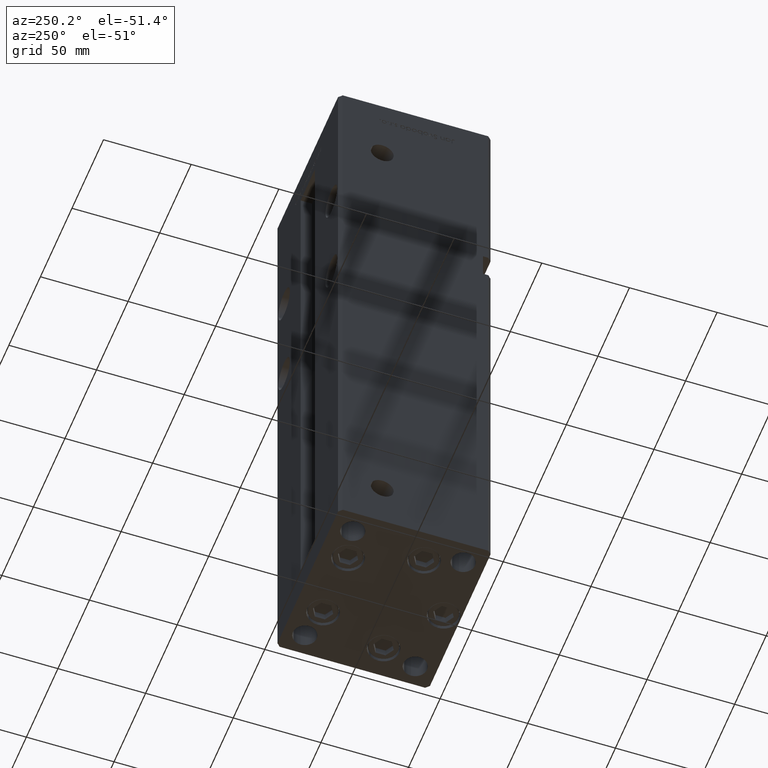
[diagram: clean part render]
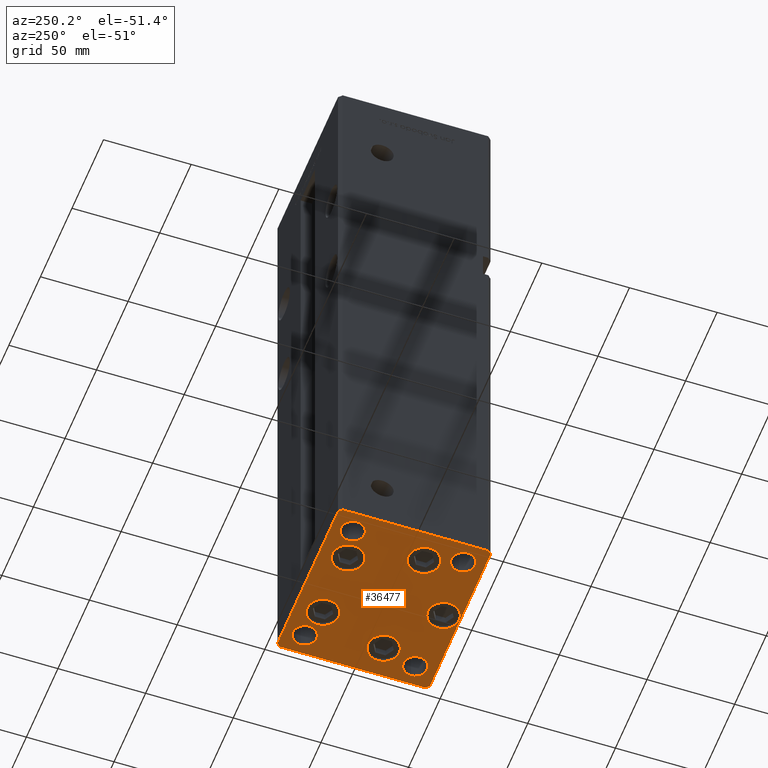
[diagram: same view with one face highlighted and labeled with its STEP entity id]
A machine part, auxiliary view. The second image highlights one B-rep face of the part: STEP entity #36477.
In plain terms, the highlighted planar face has unit normal (0, 0, -1).
Its self-contained STEP definition (entity closure, byte-faithful):
#303 = DIRECTION ( 'NONE',  ( 1.000000000000000000, 0.000000000000000000, 0.000000000000000000 ) ) ;
#406 = VERTEX_POINT ( 'NONE', #17694 ) ;
#728 = DIRECTION ( 'NONE',  ( 1.000000000000000000, 0.000000000000000000, 0.000000000000000000 ) ) ;
#948 = CIRCLE ( 'NONE', #28423, 6.749999999999999112 ) ;
#1153 = CARTESIAN_POINT ( 'NONE',  ( 47.99999999999990763, 43.50000000000000000, 0.000000000000000000 ) ) ;
#1246 = CARTESIAN_POINT ( 'NONE',  ( -48.00000000000000711, 43.49999999999996447, 0.000000000000000000 ) ) ;
#1298 = CARTESIAN_POINT ( 'NONE',  ( 10.82068048781373193, 27.62500000000000000, 0.000000000000000000 ) ) ;
#1596 = DIRECTION ( 'NONE',  ( 0.000000000000000000, -0.000000000000000000, -1.000000000000000000 ) ) ;
#1767 = CIRCLE ( 'NONE', #3488, 9.000000000000001776 ) ;
#2062 = DIRECTION ( 'NONE',  ( 0.000000000000000000, -0.000000000000000000, -1.000000000000000000 ) ) ;
#2737 = FACE_BOUND ( 'NONE', #41544, .T. ) ;
#3134 = DIRECTION ( 'NONE',  ( 1.000000000000000000, 0.000000000000000000, 0.000000000000000000 ) ) ;
#3422 = AXIS2_PLACEMENT_3D ( 'NONE', #43713, #31609, #3134 ) ;
#3488 = AXIS2_PLACEMENT_3D ( 'NONE', #46322, #21879, #38267 ) ;
#3716 = EDGE_CURVE ( 'NONE', #49162, #7151, #17108, .T. ) ;
#4215 = CIRCLE ( 'NONE', #41104, 6.749999999999999112 ) ;
#4802 = VERTEX_POINT ( 'NONE', #29209 ) ;
#5063 = AXIS2_PLACEMENT_3D ( 'NONE', #49881, #28928, #13069 ) ;
#5149 = CARTESIAN_POINT ( 'NONE',  ( 28.82068048781372838, 27.62500000000000000, 0.000000000000000000 ) ) ;
#5553 = CARTESIAN_POINT ( 'NONE',  ( 19.82068048781373193, 27.62500000000000000, 0.000000000000000000 ) ) ;
#5674 = EDGE_LOOP ( 'NONE', ( #14647, #22454 ) ) ;
#5781 = ORIENTED_EDGE ( 'NONE', *, *, #39773, .T. ) ;
#5803 = DIRECTION ( 'NONE',  ( -0.7071067811865463515, -0.7071067811865487940, 0.000000000000000000 ) ) ;
#5866 = CARTESIAN_POINT ( 'NONE',  ( -19.82068048781373903, 27.62499999999999645, 0.000000000000000000 ) ) ;
#6255 = CARTESIAN_POINT ( 'NONE',  ( 9.000000000000003553, -34.00000000000000000, 0.000000000000000000 ) ) ;
#6381 = DIRECTION ( 'NONE',  ( 1.000000000000000000, 0.000000000000000000, 0.000000000000000000 ) ) ;
#6759 = FACE_BOUND ( 'NONE', #51828, .T. ) ;
#6775 = LINE ( 'NONE', #19930, #38595 ) ;
#6898 = CIRCLE ( 'NONE', #18963, 9.000000000000001776 ) ;
#7151 = VERTEX_POINT ( 'NONE', #19169 ) ;
#7525 = CARTESIAN_POINT ( 'NONE',  ( 19.82068048781373193, 27.62500000000000000, 0.000000000000000000 ) ) ;
#7600 = DIRECTION ( 'NONE',  ( -0.7071067811865474617, 0.7071067811865474617, 0.000000000000000000 ) ) ;
#7845 = CARTESIAN_POINT ( 'NONE',  ( 32.05550741379015278, -11.33333333333333037, 0.000000000000000000 ) ) ;
#8304 = DIRECTION ( 'NONE',  ( 0.7071067811865463515, 0.7071067811865487940, 0.000000000000000000 ) ) ;
#8374 = VERTEX_POINT ( 'NONE', #29291 ) ;
#8854 = EDGE_CURVE ( 'NONE', #40274, #28571, #52290, .T. ) ;
#9269 = EDGE_CURVE ( 'NONE', #14379, #42563, #46302, .T. ) ;
#9378 = CARTESIAN_POINT ( 'NONE',  ( 31.25000000000000000, -31.49999999999999289, 0.000000000000000000 ) ) ;
#9485 = CIRCLE ( 'NONE', #40381, 9.000000000000001776 ) ;
#9519 = CARTESIAN_POINT ( 'NONE',  ( 31.25000000000000000, 31.49999999999999289, 0.000000000000000000 ) ) ;
#9998 = DIRECTION ( 'NONE',  ( 0.000000000000000000, -0.000000000000000000, -1.000000000000000000 ) ) ;
#10080 = EDGE_LOOP ( 'NONE', ( #37769, #48956 ) ) ;
#10431 = CARTESIAN_POINT ( 'NONE',  ( -38.00000000000000000, 31.50000000000000000, 0.000000000000000000 ) ) ;
#10795 = EDGE_LOOP ( 'NONE', ( #16771, #23311 ) ) ;
#10900 = DIRECTION ( 'NONE',  ( 0.000000000000000000, -0.000000000000000000, -1.000000000000000000 ) ) ;
#10939 = DIRECTION ( 'NONE',  ( 8.360113137237628665E-17, -1.000000000000000000, 0.000000000000000000 ) ) ;
#11096 = CIRCLE ( 'NONE', #17109, 9.000000000000001776 ) ;
#11134 = DIRECTION ( 'NONE',  ( 0.000000000000000000, -0.000000000000000000, -1.000000000000000000 ) ) ;
#11590 = ORIENTED_EDGE ( 'NONE', *, *, #27940, .T. ) ;
#11617 = LINE ( 'NONE', #27747, #19888 ) ;
#11683 = VERTEX_POINT ( 'NONE', #22923 ) ;
#11705 = VERTEX_POINT ( 'NONE', #6255 ) ;
#11966 = CARTESIAN_POINT ( 'NONE',  ( -10.82068048781373903, 27.62499999999999645, 0.000000000000000000 ) ) ;
#12434 = DIRECTION ( 'NONE',  ( -1.003213576468515193E-15, 1.000000000000000000, 0.000000000000000000 ) ) ;
#12894 = AXIS2_PLACEMENT_3D ( 'NONE', #5866, #34083, #42687 ) ;
#13069 = DIRECTION ( 'NONE',  ( 1.000000000000000000, 0.000000000000000000, 0.000000000000000000 ) ) ;
#13725 = EDGE_CURVE ( 'NONE', #42563, #14379, #20035, .T. ) ;
#14047 = VERTEX_POINT ( 'NONE', #9378 ) ;
#14254 = ORIENTED_EDGE ( 'NONE', *, *, #39277, .F. ) ;
#14379 = VERTEX_POINT ( 'NONE', #48425 ) ;
#14647 = ORIENTED_EDGE ( 'NONE', *, *, #39349, .T. ) ;
#14703 = DIRECTION ( 'NONE',  ( 1.000000000000000000, 0.000000000000000000, 0.000000000000000000 ) ) ;
#14729 = CIRCLE ( 'NONE', #26762, 6.749999999999999112 ) ;
#15089 = VERTEX_POINT ( 'NONE', #9519 ) ;
#15423 = AXIS2_PLACEMENT_3D ( 'NONE', #5553, #2062, #18989 ) ;
#16771 = ORIENTED_EDGE ( 'NONE', *, *, #8854, .T. ) ;
#16950 = VECTOR ( 'NONE', #12434, 1000.000000000000000 ) ;
#17108 = LINE ( 'NONE', #1246, #34261 ) ;
#17109 = AXIS2_PLACEMENT_3D ( 'NONE', #51211, #18434, #26241 ) ;
#17187 = CIRCLE ( 'NONE', #12894, 9.000000000000000000 ) ;
#17694 = CARTESIAN_POINT ( 'NONE',  ( -8.999999999999996447, -34.00000000000000000, 0.000000000000000000 ) ) ;
#18434 = DIRECTION ( 'NONE',  ( 0.000000000000000000, -0.000000000000000000, -1.000000000000000000 ) ) ;
#18558 = DIRECTION ( 'NONE',  ( 0.000000000000000000, -0.000000000000000000, -1.000000000000000000 ) ) ;
#18603 = VERTEX_POINT ( 'NONE', #49250 ) ;
#18963 = AXIS2_PLACEMENT_3D ( 'NONE', #26397, #9998, #34695 ) ;
#18989 = DIRECTION ( 'NONE',  ( 1.000000000000000000, 0.000000000000000000, 0.000000000000000000 ) ) ;
#19169 = CARTESIAN_POINT ( 'NONE',  ( -50.00000000000000711, 41.49999999999995026, 0.000000000000000000 ) ) ;
#19286 = VERTEX_POINT ( 'NONE', #38369 ) ;
#19381 = DIRECTION ( 'NONE',  ( 1.000000000000000000, 0.000000000000000000, 0.000000000000000000 ) ) ;
#19727 = VECTOR ( 'NONE', #21577, 1000.000000000000000 ) ;
#19888 = VECTOR ( 'NONE', #8304, 1000.000000000000000 ) ;
#19930 = CARTESIAN_POINT ( 'NONE',  ( -50.00000000000000000, -41.50000000000000000, 0.000000000000000000 ) ) ;
#20008 = ORIENTED_EDGE ( 'NONE', *, *, #35577, .T. ) ;
#20035 = CIRCLE ( 'NONE', #48376, 6.749999999999999112 ) ;
#20231 = LINE ( 'NONE', #20491, #42169 ) ;
#20360 = CARTESIAN_POINT ( 'NONE',  ( 44.75000000000000000, 31.49999999999999289, 0.000000000000000000 ) ) ;
#20434 = EDGE_CURVE ( 'NONE', #44543, #15089, #49290, .T. ) ;
#20491 = CARTESIAN_POINT ( 'NONE',  ( 49.99999999999992184, 41.49999999999998579, 0.000000000000000000 ) ) ;
#20696 = CARTESIAN_POINT ( 'NONE',  ( 0.000000000000000000, 0.000000000000000000, 0.000000000000000000 ) ) ;
#21446 = CARTESIAN_POINT ( 'NONE',  ( 47.99999999999990763, 43.50000000000000000, 0.000000000000000000 ) ) ;
#21577 = DIRECTION ( 'NONE',  ( 1.000000000000000000, 0.000000000000000000, 0.000000000000000000 ) ) ;
#21592 = DIRECTION ( 'NONE',  ( -1.000000000000000000, -3.614007241618350743E-16, 0.000000000000000000 ) ) ;
#21780 = ORIENTED_EDGE ( 'NONE', *, *, #47251, .T. ) ;
#21879 = DIRECTION ( 'NONE',  ( 0.000000000000000000, -0.000000000000000000, -1.000000000000000000 ) ) ;
#21885 = CIRCLE ( 'NONE', #28740, 9.000000000000000000 ) ;
#21959 = AXIS2_PLACEMENT_3D ( 'NONE', #28018, #26520, #44911 ) ;
#22291 = VECTOR ( 'NONE', #21592, 1000.000000000000000 ) ;
#22454 = ORIENTED_EDGE ( 'NONE', *, *, #42661, .T. ) ;
#22478 = EDGE_CURVE ( 'NONE', #24416, #19286, #21885, .T. ) ;
#22565 = ORIENTED_EDGE ( 'NONE', *, *, #37126, .T. ) ;
#22624 = EDGE_LOOP ( 'NONE', ( #48718, #32618 ) ) ;
#22832 = DIRECTION ( 'NONE',  ( 0.000000000000000000, -0.000000000000000000, -1.000000000000000000 ) ) ;
#22923 = CARTESIAN_POINT ( 'NONE',  ( 41.05550741379015278, -11.33333333333332860, 0.000000000000000000 ) ) ;
#23142 = AXIS2_PLACEMENT_3D ( 'NONE', #51745, #10900, #27297 ) ;
#23165 = FACE_BOUND ( 'NONE', #23926, .T. ) ;
#23311 = ORIENTED_EDGE ( 'NONE', *, *, #45742, .T. ) ;
#23816 = LINE ( 'NONE', #48008, #34388 ) ;
#23926 = EDGE_LOOP ( 'NONE', ( #22565, #20008 ) ) ;
#23935 = FACE_BOUND ( 'NONE', #36712, .T. ) ;
#24416 = VERTEX_POINT ( 'NONE', #11966 ) ;
#24673 = CARTESIAN_POINT ( 'NONE',  ( 50.00000000000000000, -41.49999999999999289, 0.000000000000000000 ) ) ;
#25621 = LINE ( 'NONE', #41995, #19727 ) ;
#25809 = DIRECTION ( 'NONE',  ( 1.000000000000000000, 0.000000000000000000, 0.000000000000000000 ) ) ;
#26241 = DIRECTION ( 'NONE',  ( 1.000000000000000000, 0.000000000000000000, 0.000000000000000000 ) ) ;
#26397 = CARTESIAN_POINT ( 'NONE',  ( -32.05550741379015278, -11.33333333333333925, 0.000000000000000000 ) ) ;
#26520 = DIRECTION ( 'NONE',  ( -0.000000000000000000, 0.000000000000000000, 1.000000000000000000 ) ) ;
#26524 = VERTEX_POINT ( 'NONE', #37140 ) ;
#26762 = AXIS2_PLACEMENT_3D ( 'NONE', #31408, #22832, #43504 ) ;
#26902 = CARTESIAN_POINT ( 'NONE',  ( -37.99999999999999289, -31.50000000000000000, 0.000000000000000000 ) ) ;
#27203 = FACE_BOUND ( 'NONE', #22624, .T. ) ;
#27286 = ORIENTED_EDGE ( 'NONE', *, *, #39592, .T. ) ;
#27297 = DIRECTION ( 'NONE',  ( 1.000000000000000000, 0.000000000000000000, 0.000000000000000000 ) ) ;
#27381 = CARTESIAN_POINT ( 'NONE',  ( -23.05550741379014923, -11.33333333333333748, 0.000000000000000000 ) ) ;
#27474 = CARTESIAN_POINT ( 'NONE',  ( -48.00000000000000711, 43.49999999999996447, 0.000000000000000000 ) ) ;
#27747 = CARTESIAN_POINT ( 'NONE',  ( 47.99999999999999289, -43.50000000000001421, 0.000000000000000000 ) ) ;
#27940 = EDGE_CURVE ( 'NONE', #34664, #14047, #46071, .T. ) ;
#28018 = CARTESIAN_POINT ( 'NONE',  ( 38.00000000000000000, 31.49999999999999289, 0.000000000000000000 ) ) ;
#28218 = CIRCLE ( 'NONE', #5063, 6.749999999999999112 ) ;
#28232 = DIRECTION ( 'NONE',  ( -0.000000000000000000, 0.000000000000000000, 1.000000000000000000 ) ) ;
#28423 = AXIS2_PLACEMENT_3D ( 'NONE', #37269, #33780, #728 ) ;
#28571 = VERTEX_POINT ( 'NONE', #5149 ) ;
#28740 = AXIS2_PLACEMENT_3D ( 'NONE', #35308, #11134, #35575 ) ;
#28928 = DIRECTION ( 'NONE',  ( -0.000000000000000000, 0.000000000000000000, 1.000000000000000000 ) ) ;
#29122 = AXIS2_PLACEMENT_3D ( 'NONE', #46745, #1596, #25809 ) ;
#29209 = CARTESIAN_POINT ( 'NONE',  ( 47.99999999999999289, -43.50000000000001421, 0.000000000000000000 ) ) ;
#29291 = CARTESIAN_POINT ( 'NONE',  ( -47.99999999999999289, -43.50000000000001421, 0.000000000000000000 ) ) ;
#29809 = VERTEX_POINT ( 'NONE', #27381 ) ;
#30432 = EDGE_CURVE ( 'NONE', #48688, #38085, #40645, .T. ) ;
#30837 = CARTESIAN_POINT ( 'NONE',  ( 38.00000000000000000, -31.49999999999999289, 0.000000000000000000 ) ) ;
#31408 = CARTESIAN_POINT ( 'NONE',  ( 38.00000000000000000, -31.49999999999999289, 0.000000000000000000 ) ) ;
#31516 = ORIENTED_EDGE ( 'NONE', *, *, #50083, .T. ) ;
#31609 = DIRECTION ( 'NONE',  ( 0.000000000000000000, -0.000000000000000000, -1.000000000000000000 ) ) ;
#31673 = CIRCLE ( 'NONE', #23142, 9.000000000000000000 ) ;
#31879 = CARTESIAN_POINT ( 'NONE',  ( 44.75000000000000000, -31.49999999999999289, 0.000000000000000000 ) ) ;
#31890 = VERTEX_POINT ( 'NONE', #36182 ) ;
#32002 = ORIENTED_EDGE ( 'NONE', *, *, #20434, .F. ) ;
#32527 = ORIENTED_EDGE ( 'NONE', *, *, #42041, .T. ) ;
#32618 = ORIENTED_EDGE ( 'NONE', *, *, #22478, .T. ) ;
#32959 = ORIENTED_EDGE ( 'NONE', *, *, #39519, .F. ) ;
#33064 = ORIENTED_EDGE ( 'NONE', *, *, #30432, .T. ) ;
#33189 = CARTESIAN_POINT ( 'NONE',  ( -44.75000000000000000, 31.50000000000000000, 0.000000000000000000 ) ) ;
#33780 = DIRECTION ( 'NONE',  ( -0.000000000000000000, 0.000000000000000000, 1.000000000000000000 ) ) ;
#34083 = DIRECTION ( 'NONE',  ( 0.000000000000000000, -0.000000000000000000, -1.000000000000000000 ) ) ;
#34261 = VECTOR ( 'NONE', #5803, 1000.000000000000000 ) ;
#34388 = VECTOR ( 'NONE', #10939, 1000.000000000000000 ) ;
#34664 = VERTEX_POINT ( 'NONE', #31879 ) ;
#34695 = DIRECTION ( 'NONE',  ( 1.000000000000000000, 0.000000000000000000, 0.000000000000000000 ) ) ;
#34926 = ORIENTED_EDGE ( 'NONE', *, *, #43733, .F. ) ;
#35308 = CARTESIAN_POINT ( 'NONE',  ( -19.82068048781373903, 27.62499999999999645, 0.000000000000000000 ) ) ;
#35575 = DIRECTION ( 'NONE',  ( 1.000000000000000000, 0.000000000000000000, 0.000000000000000000 ) ) ;
#35577 = EDGE_CURVE ( 'NONE', #11705, #406, #31673, .T. ) ;
#36005 = CIRCLE ( 'NONE', #3422, 9.000000000000000000 ) ;
#36110 = DIRECTION ( 'NONE',  ( -0.000000000000000000, 0.000000000000000000, 1.000000000000000000 ) ) ;
#36182 = CARTESIAN_POINT ( 'NONE',  ( 23.05550741379014923, -11.33333333333333037, 0.000000000000000000 ) ) ;
#36332 = EDGE_CURVE ( 'NONE', #8374, #4802, #25621, .T. ) ;
#36477 = ADVANCED_FACE ( 'NONE', ( #27203, #43572, #6759, #23165, #39553, #2737, #23935, #40059, #52679, #40587 ), #44869, .T. ) ;
#36712 = EDGE_LOOP ( 'NONE', ( #11590, #52260 ) ) ;
#37126 = EDGE_CURVE ( 'NONE', #406, #11705, #36005, .T. ) ;
#37140 = CARTESIAN_POINT ( 'NONE',  ( -50.00000000000000000, -41.50000000000000000, 0.000000000000000000 ) ) ;
#37269 = CARTESIAN_POINT ( 'NONE',  ( -38.00000000000000000, 31.50000000000000000, 0.000000000000000000 ) ) ;
#37769 = ORIENTED_EDGE ( 'NONE', *, *, #9269, .T. ) ;
#38085 = VERTEX_POINT ( 'NONE', #44236 ) ;
#38267 = DIRECTION ( 'NONE',  ( 1.000000000000000000, 0.000000000000000000, 0.000000000000000000 ) ) ;
#38369 = CARTESIAN_POINT ( 'NONE',  ( -28.82068048781373548, 27.62499999999999645, 0.000000000000000000 ) ) ;
#38595 = VECTOR ( 'NONE', #47633, 1000.000000000000114 ) ;
#38649 = EDGE_LOOP ( 'NONE', ( #32959, #34926 ) ) ;
#39241 = DIRECTION ( 'NONE',  ( 1.000000000000000000, 0.000000000000000000, 0.000000000000000000 ) ) ;
#39277 = EDGE_CURVE ( 'NONE', #15089, #44543, #28218, .T. ) ;
#39349 = EDGE_CURVE ( 'NONE', #40803, #29809, #11096, .T. ) ;
#39519 = EDGE_CURVE ( 'NONE', #18603, #48998, #4215, .T. ) ;
#39553 = FACE_BOUND ( 'NONE', #5674, .T. ) ;
#39592 = EDGE_CURVE ( 'NONE', #47047, #49162, #45762, .T. ) ;
#39773 = EDGE_CURVE ( 'NONE', #26524, #8374, #6775, .T. ) ;
#39800 = DIRECTION ( 'NONE',  ( 0.000000000000000000, -0.000000000000000000, -1.000000000000000000 ) ) ;
#40059 = FACE_BOUND ( 'NONE', #38649, .T. ) ;
#40274 = VERTEX_POINT ( 'NONE', #1298 ) ;
#40381 = AXIS2_PLACEMENT_3D ( 'NONE', #7845, #41162, #303 ) ;
#40587 = FACE_BOUND ( 'NONE', #10080, .T. ) ;
#40645 = LINE ( 'NONE', #52736, #16950 ) ;
#40803 = VERTEX_POINT ( 'NONE', #46515 ) ;
#41104 = AXIS2_PLACEMENT_3D ( 'NONE', #10431, #36110, #6381 ) ;
#41107 = EDGE_CURVE ( 'NONE', #19286, #24416, #17187, .T. ) ;
#41162 = DIRECTION ( 'NONE',  ( 0.000000000000000000, -0.000000000000000000, -1.000000000000000000 ) ) ;
#41189 = ORIENTED_EDGE ( 'NONE', *, *, #41891, .T. ) ;
#41544 = EDGE_LOOP ( 'NONE', ( #32002, #14254 ) ) ;
#41765 = ORIENTED_EDGE ( 'NONE', *, *, #36332, .T. ) ;
#41891 = EDGE_CURVE ( 'NONE', #31890, #11683, #1767, .T. ) ;
#41995 = CARTESIAN_POINT ( 'NONE',  ( -47.99999999999999289, -43.50000000000001421, 0.000000000000000000 ) ) ;
#42041 = EDGE_CURVE ( 'NONE', #11683, #31890, #9485, .T. ) ;
#42054 = AXIS2_PLACEMENT_3D ( 'NONE', #20696, #28232, #44091 ) ;
#42169 = VECTOR ( 'NONE', #7600, 1000.000000000000114 ) ;
#42563 = VERTEX_POINT ( 'NONE', #47329 ) ;
#42661 = EDGE_CURVE ( 'NONE', #29809, #40803, #6898, .T. ) ;
#42687 = DIRECTION ( 'NONE',  ( 1.000000000000000000, 0.000000000000000000, 0.000000000000000000 ) ) ;
#43148 = ORIENTED_EDGE ( 'NONE', *, *, #43953, .T. ) ;
#43504 = DIRECTION ( 'NONE',  ( 1.000000000000000000, 0.000000000000000000, 0.000000000000000000 ) ) ;
#43572 = FACE_BOUND ( 'NONE', #10795, .T. ) ;
#43713 = CARTESIAN_POINT ( 'NONE',  ( 4.163799117101000559E-15, -34.00000000000000000, 0.000000000000000000 ) ) ;
#43733 = EDGE_CURVE ( 'NONE', #48998, #18603, #948, .T. ) ;
#43953 = EDGE_CURVE ( 'NONE', #38085, #47047, #20231, .T. ) ;
#44091 = DIRECTION ( 'NONE',  ( 1.000000000000000000, 0.000000000000000000, 0.000000000000000000 ) ) ;
#44236 = CARTESIAN_POINT ( 'NONE',  ( 49.99999999999992184, 41.49999999999998579, 0.000000000000000000 ) ) ;
#44471 = EDGE_CURVE ( 'NONE', #14047, #34664, #14729, .T. ) ;
#44543 = VERTEX_POINT ( 'NONE', #20360 ) ;
#44763 = EDGE_LOOP ( 'NONE', ( #5781, #41765, #31516, #33064, #43148, #27286, #45950, #21780 ) ) ;
#44869 = PLANE ( 'NONE',  #42054 ) ;
#44911 = DIRECTION ( 'NONE',  ( 1.000000000000000000, 0.000000000000000000, 0.000000000000000000 ) ) ;
#45630 = AXIS2_PLACEMENT_3D ( 'NONE', #7525, #39800, #19381 ) ;
#45742 = EDGE_CURVE ( 'NONE', #28571, #40274, #49090, .T. ) ;
#45762 = LINE ( 'NONE', #1153, #22291 ) ;
#45950 = ORIENTED_EDGE ( 'NONE', *, *, #3716, .T. ) ;
#46071 = CIRCLE ( 'NONE', #48630, 6.749999999999999112 ) ;
#46302 = CIRCLE ( 'NONE', #29122, 6.749999999999999112 ) ;
#46322 = CARTESIAN_POINT ( 'NONE',  ( 32.05550741379015278, -11.33333333333333037, 0.000000000000000000 ) ) ;
#46515 = CARTESIAN_POINT ( 'NONE',  ( -41.05550741379015278, -11.33333333333333925, 0.000000000000000000 ) ) ;
#46745 = CARTESIAN_POINT ( 'NONE',  ( -37.99999999999999289, -31.50000000000000000, 0.000000000000000000 ) ) ;
#47047 = VERTEX_POINT ( 'NONE', #21446 ) ;
#47225 = DIRECTION ( 'NONE',  ( 0.000000000000000000, -0.000000000000000000, -1.000000000000000000 ) ) ;
#47251 = EDGE_CURVE ( 'NONE', #7151, #26524, #23816, .T. ) ;
#47329 = CARTESIAN_POINT ( 'NONE',  ( -44.74999999999999289, -31.50000000000000000, 0.000000000000000000 ) ) ;
#47633 = DIRECTION ( 'NONE',  ( 0.7071067811865474617, -0.7071067811865474617, 0.000000000000000000 ) ) ;
#48008 = CARTESIAN_POINT ( 'NONE',  ( -50.00000000000000711, 41.49999999999995026, 0.000000000000000000 ) ) ;
#48376 = AXIS2_PLACEMENT_3D ( 'NONE', #26902, #18558, #39241 ) ;
#48425 = CARTESIAN_POINT ( 'NONE',  ( -31.24999999999999289, -31.50000000000000000, 0.000000000000000000 ) ) ;
#48630 = AXIS2_PLACEMENT_3D ( 'NONE', #30837, #47225, #14703 ) ;
#48688 = VERTEX_POINT ( 'NONE', #24673 ) ;
#48718 = ORIENTED_EDGE ( 'NONE', *, *, #41107, .T. ) ;
#48956 = ORIENTED_EDGE ( 'NONE', *, *, #13725, .T. ) ;
#48998 = VERTEX_POINT ( 'NONE', #33189 ) ;
#49090 = CIRCLE ( 'NONE', #45630, 8.999999999999998224 ) ;
#49162 = VERTEX_POINT ( 'NONE', #27474 ) ;
#49250 = CARTESIAN_POINT ( 'NONE',  ( -31.25000000000000000, 31.50000000000000000, 0.000000000000000000 ) ) ;
#49290 = CIRCLE ( 'NONE', #21959, 6.749999999999999112 ) ;
#49881 = CARTESIAN_POINT ( 'NONE',  ( 38.00000000000000000, 31.49999999999999289, 0.000000000000000000 ) ) ;
#50083 = EDGE_CURVE ( 'NONE', #4802, #48688, #11617, .T. ) ;
#51211 = CARTESIAN_POINT ( 'NONE',  ( -32.05550741379015278, -11.33333333333333925, 0.000000000000000000 ) ) ;
#51745 = CARTESIAN_POINT ( 'NONE',  ( 4.163799117101000559E-15, -34.00000000000000000, 0.000000000000000000 ) ) ;
#51828 = EDGE_LOOP ( 'NONE', ( #41189, #32527 ) ) ;
#52260 = ORIENTED_EDGE ( 'NONE', *, *, #44471, .T. ) ;
#52290 = CIRCLE ( 'NONE', #15423, 8.999999999999998224 ) ;
#52679 = FACE_OUTER_BOUND ( 'NONE', #44763, .T. ) ;
#52736 = CARTESIAN_POINT ( 'NONE',  ( 50.00000000000000000, -41.49999999999999289, 0.000000000000000000 ) ) ;